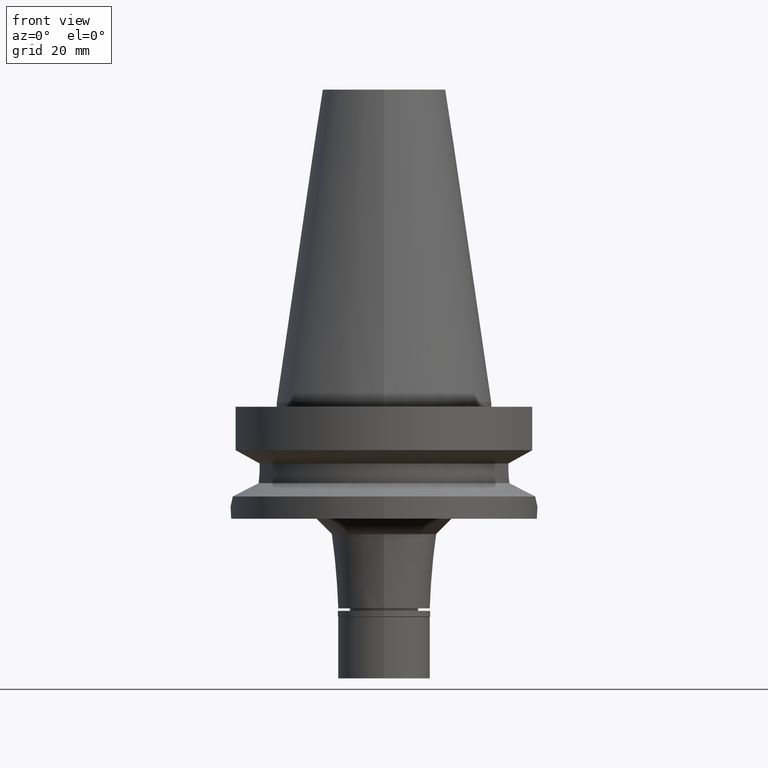
[diagram: clean part render]
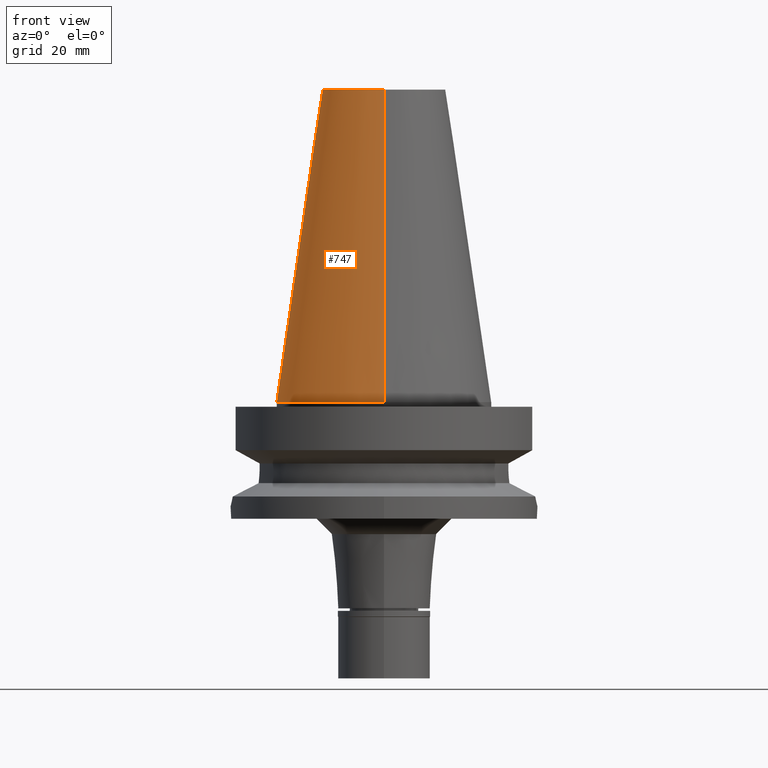
[diagram: same view with one face highlighted and labeled with its STEP entity id]
A machine part, front view. The second image highlights one B-rep face of the part: STEP entity #747.
In plain terms, the highlighted conical surface has half-angle 8.297 deg.
Its self-contained STEP definition (entity closure, byte-faithful):
#98 = DIRECTION ( 'NONE',  ( 0.0000000000000000000, -1.000000000000000000, 0.0000000000000000000 ) ) ;
#206 = DIRECTION ( 'NONE',  ( 0.0000000000000000000, 0.0000000000000000000, -1.000000000000000000 ) ) ;
#582 = CARTESIAN_POINT ( 'NONE',  ( 0.0000000000000000000, -20.07942971896000017, 101.7999999999999972 ) ) ;
#607 = DIRECTION ( 'NONE',  ( 0.0000000000000000000, 0.0000000000000000000, -1.000000000000000000 ) ) ;
#617 = DIRECTION ( 'NONE',  ( 0.0000000000000000000, -0.1443043893538948075, -0.9895333461855641000 ) ) ;
#665 = CARTESIAN_POINT ( 'NONE',  ( 0.0000000000000000000, 34.92499999999999716, 3.979039320256999774E-13 ) ) ;
#747 = ADVANCED_FACE ( 'NONE', ( #1683 ), #915, .T. ) ;
#750 = CARTESIAN_POINT ( 'NONE',  ( 0.0000000000000000000, -34.92499999999999716, 3.979039320256999774E-13 ) ) ;
#852 = DIRECTION ( 'NONE',  ( 0.0000000000000000000, -1.000000000000000000, 0.0000000000000000000 ) ) ;
#915 = CONICAL_SURFACE ( 'NONE', #2498, 27.50221485948000222, 0.1448099680379422438 ) ;
#983 = ORIENTED_EDGE ( 'NONE', *, *, #1161, .F. ) ;
#1049 = VERTEX_POINT ( 'NONE', #1230 ) ;
#1161 = EDGE_CURVE ( 'NONE', #1049, #1607, #1872, .T. ) ;
#1225 = EDGE_LOOP ( 'NONE', ( #1693, #983, #2004, #2322 ) ) ;
#1230 = CARTESIAN_POINT ( 'NONE',  ( 0.0000000000000000000, -20.07942971896000017, 101.7999999999999972 ) ) ;
#1367 = VECTOR ( 'NONE', #617, 1000.000000000000114 ) ;
#1557 = VERTEX_POINT ( 'NONE', #665 ) ;
#1607 = VERTEX_POINT ( 'NONE', #750 ) ;
#1633 = EDGE_CURVE ( 'NONE', #3144, #1557, #2886, .T. ) ;
#1648 = DIRECTION ( 'NONE',  ( 0.0000000000000000000, 0.1443043893538948075, -0.9895333461855641000 ) ) ;
#1662 = CARTESIAN_POINT ( 'NONE',  ( 0.0000000000000000000, 20.07942971896000017, 101.7999999999999972 ) ) ;
#1683 = FACE_OUTER_BOUND ( 'NONE', #1225, .T. ) ;
#1693 = ORIENTED_EDGE ( 'NONE', *, *, #2546, .F. ) ;
#1713 = CARTESIAN_POINT ( 'NONE',  ( 0.0000000000000000000, 20.07942971896000017, 101.7999999999999972 ) ) ;
#1732 = CIRCLE ( 'NONE', #1851, 20.07942971896000017 ) ;
#1851 = AXIS2_PLACEMENT_3D ( 'NONE', #2560, #607, #98 ) ;
#1858 = CARTESIAN_POINT ( 'NONE',  ( 0.0000000000000000000, 1.847992019912999597E-14, 3.979039320256999774E-13 ) ) ;
#1872 = LINE ( 'NONE', #582, #1367 ) ;
#1951 = EDGE_CURVE ( 'NONE', #1049, #3144, #1732, .T. ) ;
#2004 = ORIENTED_EDGE ( 'NONE', *, *, #1951, .T. ) ;
#2322 = ORIENTED_EDGE ( 'NONE', *, *, #1633, .T. ) ;
#2429 = CARTESIAN_POINT ( 'NONE',  ( 0.0000000000000000000, 1.847992019912999597E-14, 50.89999999999999858 ) ) ;
#2498 = AXIS2_PLACEMENT_3D ( 'NONE', #2429, #206, #2669 ) ;
#2546 = EDGE_CURVE ( 'NONE', #1607, #1557, #2616, .T. ) ;
#2560 = CARTESIAN_POINT ( 'NONE',  ( 0.0000000000000000000, 1.847992019912999597E-14, 101.7999999999999972 ) ) ;
#2588 = DIRECTION ( 'NONE',  ( 0.0000000000000000000, 0.0000000000000000000, -1.000000000000000000 ) ) ;
#2616 = CIRCLE ( 'NONE', #2822, 34.92499999999999716 ) ;
#2669 = DIRECTION ( 'NONE',  ( 0.0000000000000000000, -1.000000000000000000, 0.0000000000000000000 ) ) ;
#2822 = AXIS2_PLACEMENT_3D ( 'NONE', #1858, #2588, #852 ) ;
#2886 = LINE ( 'NONE', #1662, #3159 ) ;
#3144 = VERTEX_POINT ( 'NONE', #1713 ) ;
#3159 = VECTOR ( 'NONE', #1648, 1000.000000000000114 ) ;